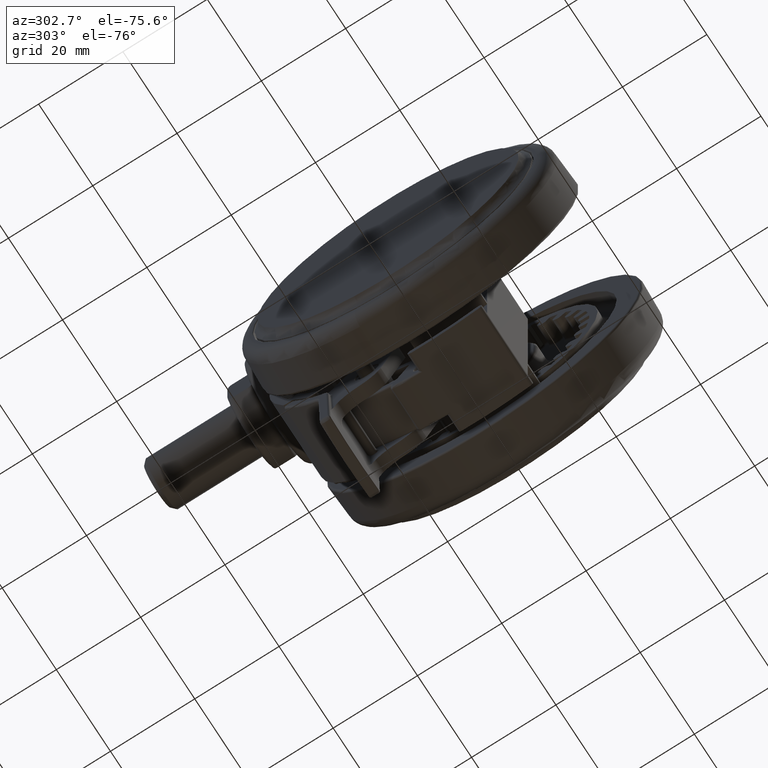
[diagram: clean part render]
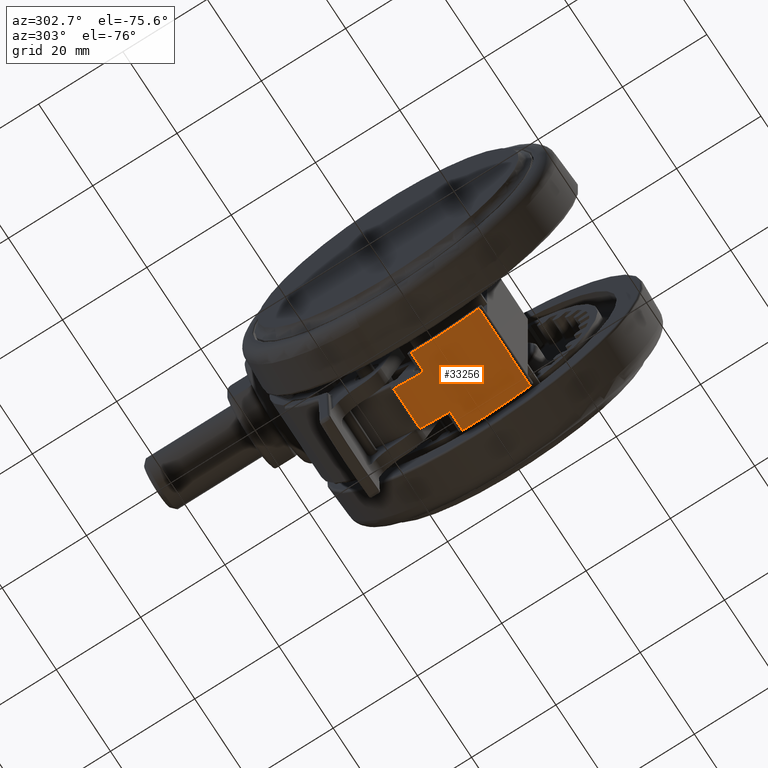
[diagram: same view with one face highlighted and labeled with its STEP entity id]
A machine part, auxiliary view. The second image highlights one B-rep face of the part: STEP entity #33256.
In plain terms, the highlighted cylindrical surface (partial cylindrical patch) has radius 37.5 mm, axis along (-1, 0, 0).
Its self-contained STEP definition (entity closure, byte-faithful):
#251 = VERTEX_POINT ( 'NONE', #12622 ) ;
#496 = CARTESIAN_POINT ( 'NONE',  ( -5.204170427930421300E-015, 0.0000000000000000000, -14.34999999999990500 ) ) ;
#2016 = CARTESIAN_POINT ( 'NONE',  ( 8.389714396454085200, 36.54945543159200100, -14.34999999999990500 ) ) ;
#2198 = EDGE_CURVE ( 'NONE', #29776, #53155, #35438, .T. ) ;
#2566 = EDGE_CURVE ( 'NONE', #17987, #34300, #15742, .T. ) ;
#2598 = VERTEX_POINT ( 'NONE', #18199 ) ;
#3390 = VECTOR ( 'NONE', #64827, 1000.000000000000000 ) ;
#5635 = CARTESIAN_POINT ( 'NONE',  ( -5.204170427930421300E-015, 0.0000000000000000000, -33.34999999999990900 ) ) ;
#5996 = ORIENTED_EDGE ( 'NONE', *, *, #15212, .T. ) ;
#6572 = LINE ( 'NONE', #18087, #48467 ) ;
#7615 = CIRCLE ( 'NONE', #18110, 37.50000000000000000 ) ;
#8583 = AXIS2_PLACEMENT_3D ( 'NONE', #496, #45605, #68439 ) ;
#9974 = EDGE_CURVE ( 'NONE', #251, #29776, #7615, .T. ) ;
#11316 = DIRECTION ( 'NONE',  ( -0.1091445485807130300, 0.9940258887549722200, 0.0000000000000000000 ) ) ;
#11328 = CARTESIAN_POINT ( 'NONE',  ( -14.76982607915160300, 34.46885895401260300, -28.69999999999990700 ) ) ;
#12369 = DIRECTION ( 'NONE',  ( -0.0000000000000000000, 0.0000000000000000000, 1.000000000000000000 ) ) ;
#12487 = DIRECTION ( 'NONE',  ( 0.0000000000000000000, 0.0000000000000000000, 1.000000000000000000 ) ) ;
#12622 = CARTESIAN_POINT ( 'NONE',  ( 8.389714396454085200, 36.54945543159200100, -33.34999999999990900 ) ) ;
#14148 = CARTESIAN_POINT ( 'NONE',  ( -14.76982607915160300, 34.46885895401260300, -18.99999999999990800 ) ) ;
#15212 = EDGE_CURVE ( 'NONE', #53155, #67302, #45202, .T. ) ;
#15658 = EDGE_CURVE ( 'NONE', #35349, #2598, #63798, .T. ) ;
#15742 = CIRCLE ( 'NONE', #16655, 37.50000000000000000 ) ;
#16655 = AXIS2_PLACEMENT_3D ( 'NONE', #46698, #12487, #52407 ) ;
#16958 = CARTESIAN_POINT ( 'NONE',  ( -5.204170427930421300E-015, 0.0000000000000000000, -18.99999999999990800 ) ) ;
#17987 = VERTEX_POINT ( 'NONE', #2016 ) ;
#18087 = CARTESIAN_POINT ( 'NONE',  ( -7.797276745756021500, 36.68040996703954400, -14.34999999999990500 ) ) ;
#18110 = AXIS2_PLACEMENT_3D ( 'NONE', #5635, #45505, #11316 ) ;
#18199 = CARTESIAN_POINT ( 'NONE',  ( -7.797276745756021500, 36.68040996703954400, -18.99999999999990800 ) ) ;
#21970 = CARTESIAN_POINT ( 'NONE',  ( -7.797276745756021500, 36.68040996703954400, -33.34999999999990900 ) ) ;
#22664 = DIRECTION ( 'NONE',  ( 0.1091445485807130300, -0.9940258887549722200, 0.0000000000000000000 ) ) ;
#23240 = ORIENTED_EDGE ( 'NONE', *, *, #28913, .T. ) ;
#24628 = FACE_OUTER_BOUND ( 'NONE', #66054, .T. ) ;
#28241 = EDGE_CURVE ( 'NONE', #67302, #35349, #32179, .T. ) ;
#28913 = EDGE_CURVE ( 'NONE', #17987, #251, #67891, .T. ) ;
#29245 = CARTESIAN_POINT ( 'NONE',  ( -5.204170427930421300E-015, 0.0000000000000000000, -28.69999999999990700 ) ) ;
#29776 = VERTEX_POINT ( 'NONE', #21970 ) ;
#30686 = CARTESIAN_POINT ( 'NONE',  ( -7.797276745756021500, 36.68040996703954400, -14.34999999999990500 ) ) ;
#32179 = LINE ( 'NONE', #54236, #33975 ) ;
#33256 = ADVANCED_FACE ( 'NONE', ( #24628 ), #47908, .T. ) ;
#33975 = VECTOR ( 'NONE', #42792, 1000.000000000000000 ) ;
#34065 = ORIENTED_EDGE ( 'NONE', *, *, #9974, .T. ) ;
#34235 = ORIENTED_EDGE ( 'NONE', *, *, #2198, .T. ) ;
#34300 = VERTEX_POINT ( 'NONE', #58944 ) ;
#35020 = DIRECTION ( 'NONE',  ( -0.1091445485807130300, 0.9940258887549722200, 0.0000000000000000000 ) ) ;
#35349 = VERTEX_POINT ( 'NONE', #14148 ) ;
#35438 = LINE ( 'NONE', #30686, #3390 ) ;
#36139 = CARTESIAN_POINT ( 'NONE',  ( 8.389714396454085200, 36.54945543159200100, -14.34999999999990500 ) ) ;
#38031 = ORIENTED_EDGE ( 'NONE', *, *, #2566, .F. ) ;
#42792 = DIRECTION ( 'NONE',  ( -0.0000000000000000000, 0.0000000000000000000, 1.000000000000000000 ) ) ;
#43953 = ORIENTED_EDGE ( 'NONE', *, *, #28241, .T. ) ;
#45202 = CIRCLE ( 'NONE', #60885, 37.50000000000000000 ) ;
#45505 = DIRECTION ( 'NONE',  ( 0.0000000000000000000, 0.0000000000000000000, 1.000000000000000000 ) ) ;
#45605 = DIRECTION ( 'NONE',  ( 0.0000000000000000000, -0.0000000000000000000, -1.000000000000000000 ) ) ;
#46698 = CARTESIAN_POINT ( 'NONE',  ( -5.204170427930421300E-015, 0.0000000000000000000, -14.34999999999990500 ) ) ;
#46934 = DIRECTION ( 'NONE',  ( 0.0000000000000000000, -0.0000000000000000000, -1.000000000000000000 ) ) ;
#47908 = CYLINDRICAL_SURFACE ( 'NONE', #8583, 37.50000000000000000 ) ;
#48467 = VECTOR ( 'NONE', #12369, 1000.000000000000000 ) ;
#48732 = ORIENTED_EDGE ( 'NONE', *, *, #15658, .T. ) ;
#52407 = DIRECTION ( 'NONE',  ( -0.1091445485807130300, 0.9940258887549722200, 0.0000000000000000000 ) ) ;
#53155 = VERTEX_POINT ( 'NONE', #67626 ) ;
#54236 = CARTESIAN_POINT ( 'NONE',  ( -14.76982607915160300, 34.46885895401260300, -14.34999999999990500 ) ) ;
#56902 = DIRECTION ( 'NONE',  ( 0.0000000000000000000, -0.0000000000000000000, -1.000000000000000000 ) ) ;
#58944 = CARTESIAN_POINT ( 'NONE',  ( -7.797276745756021500, 36.68040996703954400, -14.34999999999990500 ) ) ;
#60885 = AXIS2_PLACEMENT_3D ( 'NONE', #29245, #69140, #35020 ) ;
#61090 = EDGE_CURVE ( 'NONE', #2598, #34300, #6572, .T. ) ;
#63798 = CIRCLE ( 'NONE', #65692, 37.50000000000000000 ) ;
#64827 = DIRECTION ( 'NONE',  ( -0.0000000000000000000, 0.0000000000000000000, 1.000000000000000000 ) ) ;
#65692 = AXIS2_PLACEMENT_3D ( 'NONE', #16958, #56902, #22664 ) ;
#66054 = EDGE_LOOP ( 'NONE', ( #34235, #5996, #43953, #48732, #68924, #38031, #23240, #34065 ) ) ;
#67302 = VERTEX_POINT ( 'NONE', #11328 ) ;
#67626 = CARTESIAN_POINT ( 'NONE',  ( -7.797276745756021500, 36.68040996703954400, -28.69999999999990700 ) ) ;
#67891 = LINE ( 'NONE', #36139, #69660 ) ;
#68439 = DIRECTION ( 'NONE',  ( 0.1091445485807130300, -0.9940258887549722200, 0.0000000000000000000 ) ) ;
#68924 = ORIENTED_EDGE ( 'NONE', *, *, #61090, .T. ) ;
#69140 = DIRECTION ( 'NONE',  ( 0.0000000000000000000, 0.0000000000000000000, 1.000000000000000000 ) ) ;
#69660 = VECTOR ( 'NONE', #46934, 1000.000000000000000 ) ;